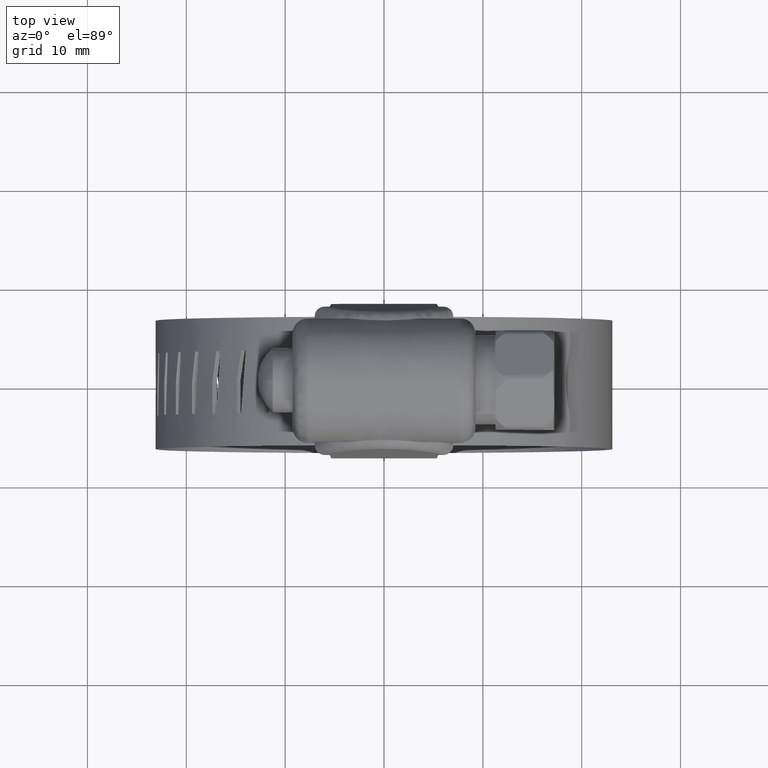
[diagram: clean part render]
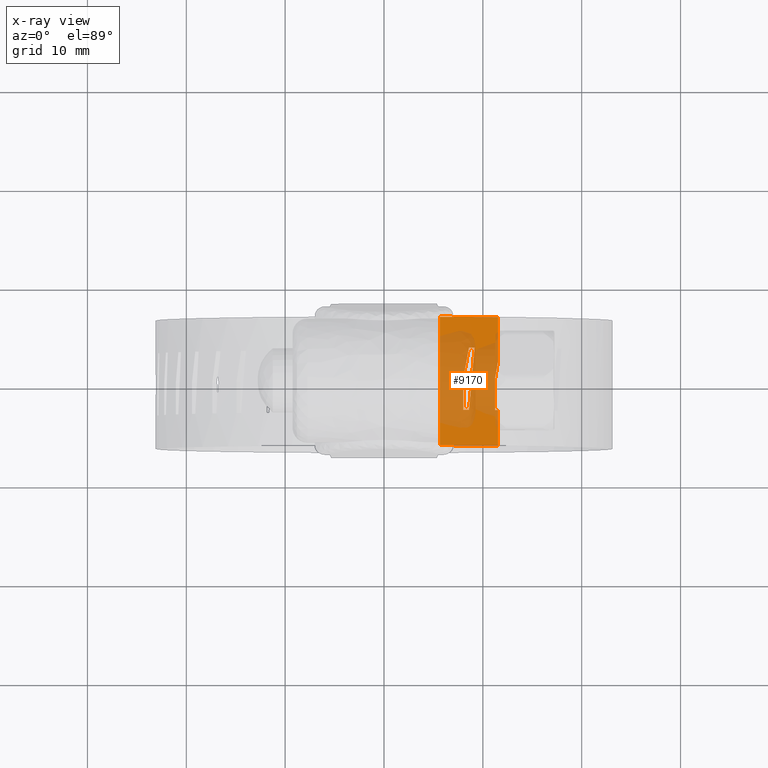
[diagram: x-ray — body ghosted, one internal face saturated and labeled with its STEP entity id]
A machine part, top view, then the same camera in x-ray: the body is ghosted and one INTERNAL B-rep face — a face not visible from any outside direction — is saturated and labeled: STEP entity #9170.
In plain terms, the highlighted face is a freeform B-spline surface patch.
Its self-contained STEP definition (entity closure, byte-faithful):
#7953=CARTESIAN_POINT('',(8.595020930609032,3.401648000000000,10.743378157524420));
#7954=VERTEX_POINT('',#7953);
#7955=CARTESIAN_POINT('',(9.166583311885781,3.401648000000000,10.541543048641021));
#7956=VERTEX_POINT('',#7955);
#7957=CARTESIAN_POINT('',(8.595020930609032,3.401648000000000,10.743378157524420));
#7958=CARTESIAN_POINT('',(9.166583311885781,3.401648000000000,10.541543048641021));
#7959=QUASI_UNIFORM_CURVE('',1,(#7957,#7958),.UNSPECIFIED.,.F.,.U.);
#7960=EDGE_CURVE('',#7954,#7956,#7959,.T.);
#7989=CARTESIAN_POINT('',(8.016921537547791,0.251647999999989,10.932719739934139));
#7990=VERTEX_POINT('',#7989);
#7991=CARTESIAN_POINT('',(8.016921537547791,0.251647999999989,10.932719739934139));
#7992=CARTESIAN_POINT('',(8.595020930609032,3.401648000000000,10.743378157524420));
#7993=QUASI_UNIFORM_CURVE('',1,(#7991,#7992),.UNSPECIFIED.,.F.,.U.);
#7994=EDGE_CURVE('',#7990,#7954,#7993,.T.);
#8017=CARTESIAN_POINT('',(8.016921537547850,-2.898352000000000,10.932719739934260));
#8018=VERTEX_POINT('',#8017);
#8019=CARTESIAN_POINT('',(8.016921537547850,-2.898352000000000,10.932719739934260));
#8020=CARTESIAN_POINT('',(8.016921537547791,0.251647999999989,10.932719739934139));
#8021=QUASI_UNIFORM_CURVE('',1,(#8019,#8020),.UNSPECIFIED.,.F.,.U.);
#8022=EDGE_CURVE('',#8018,#7990,#8021,.T.);
#8045=CARTESIAN_POINT('',(8.595020930609032,-2.898352000000000,10.743378157524420));
#8046=VERTEX_POINT('',#8045);
#8047=CARTESIAN_POINT('',(8.595020930609032,-2.898352000000000,10.743378157524420));
#8048=CARTESIAN_POINT('',(8.016921537547850,-2.898352000000000,10.932719739934260));
#8049=QUASI_UNIFORM_CURVE('',1,(#8047,#8048),.UNSPECIFIED.,.F.,.U.);
#8050=EDGE_CURVE('',#8046,#8018,#8049,.T.);
#8073=CARTESIAN_POINT('',(9.166583311885781,3.401648000000000,10.541543048641021));
#8074=CARTESIAN_POINT('',(8.595020930609032,-2.898352000000000,10.743378157524420));
#8075=QUASI_UNIFORM_CURVE('',1,(#8073,#8074),.UNSPECIFIED.,.F.,.U.);
#8076=EDGE_CURVE('',#7956,#8046,#8075,.T.);
#8093=CARTESIAN_POINT('',(11.534787568611300,2.028665353573155,9.541679945752271));
#8094=VERTEX_POINT('',#8093);
#8123=CARTESIAN_POINT('',(11.223236834775900,0.251647999999989,9.688952096084449));
#8124=VERTEX_POINT('',#8123);
#8130=CARTESIAN_POINT('',(11.223236834775900,0.251647999999989,9.688952096084449));
#8131=CARTESIAN_POINT('',(11.534787568611300,2.028665353573155,9.541679945752271));
#8132=QUASI_UNIFORM_CURVE('',1,(#8130,#8131),.UNSPECIFIED.,.F.,.U.);
#8133=EDGE_CURVE('',#8124,#8094,#8132,.T.);
#8143=CARTESIAN_POINT('',(11.223236834776101,-2.898352000000000,9.688952096084670));
#8144=VERTEX_POINT('',#8143);
#8145=CARTESIAN_POINT('',(11.223236834776101,-2.898352000000000,9.688952096084670));
#8146=CARTESIAN_POINT('',(11.223236834775900,0.251647999999989,9.688952096084449));
#8147=QUASI_UNIFORM_CURVE('',1,(#8145,#8146),.UNSPECIFIED.,.F.,.U.);
#8148=EDGE_CURVE('',#8144,#8124,#8147,.T.);
#8173=CARTESIAN_POINT('',(11.534787568611300,-2.898352000000000,9.541679945752271));
#8174=VERTEX_POINT('',#8173);
#8180=CARTESIAN_POINT('',(11.534787568611300,-2.898352000000000,9.541679945752271));
#8181=CARTESIAN_POINT('',(11.223236834776101,-2.898352000000000,9.688952096084670));
#8182=QUASI_UNIFORM_CURVE('',1,(#8180,#8181),.UNSPECIFIED.,.F.,.U.);
#8183=EDGE_CURVE('',#8174,#8144,#8182,.T.);
#8803=CARTESIAN_POINT('',(5.648248449040190,-6.499999999999840,11.559567490402561));
#8804=VERTEX_POINT('',#8803);
#8814=CARTESIAN_POINT('',(11.534787568611300,-6.499999999999840,9.541679945752271));
#8815=VERTEX_POINT('',#8814);
#8816=CARTESIAN_POINT('',(11.534787568611300,-6.499999999999840,9.541679945752271));
#8817=CARTESIAN_POINT('',(10.802827192343960,-6.499999999999829,9.893536437489994));
#8818=CARTESIAN_POINT('',(8.887511842089905,-6.499999999999856,10.707968489300191));
#8819=CARTESIAN_POINT('',(6.886730952510479,-6.499999999999829,11.292551027367770));
#8820=CARTESIAN_POINT('',(5.648248449040190,-6.499999999999840,11.559567490402561));
#8821=B_SPLINE_CURVE_WITH_KNOTS('',3,(#8816,#8817,#8818,#8819,#8820),.UNSPECIFIED.,.F.,.U.,(4,1,4),(4.568328E-010,2.436418763886612,6.237227370507423),.UNSPECIFIED.);
#8822=EDGE_CURVE('',#8815,#8804,#8821,.T.);
#8913=CARTESIAN_POINT('',(11.534787568611300,6.500000000000170,9.541679945752271));
#8914=VERTEX_POINT('',#8913);
#8923=CARTESIAN_POINT('',(5.648248449040190,6.500000000000170,11.559567490402561));
#8924=VERTEX_POINT('',#8923);
#8925=CARTESIAN_POINT('',(11.534787568611300,6.500000000000170,9.541679945752271));
#8926=CARTESIAN_POINT('',(10.802827192343971,6.500000000000158,9.893536437489997));
#8927=CARTESIAN_POINT('',(8.887511842089900,6.500000000000190,10.707968489300191));
#8928=CARTESIAN_POINT('',(6.886730952510487,6.500000000000159,11.292551027367770));
#8929=CARTESIAN_POINT('',(5.648248449040190,6.500000000000170,11.559567490402561));
#8930=B_SPLINE_CURVE_WITH_KNOTS('',3,(#8925,#8926,#8927,#8928,#8929),.UNSPECIFIED.,.F.,.U.,(4,1,4),(4.568328E-010,2.436418763886612,6.237227370507423),.UNSPECIFIED.);
#8931=EDGE_CURVE('',#8914,#8924,#8930,.T.);
#8966=CARTESIAN_POINT('',(5.648248449040190,6.500000000000170,11.559567490402561));
#8967=CARTESIAN_POINT('',(5.648248449040190,-6.499999999999840,11.559567490402561));
#8968=QUASI_UNIFORM_CURVE('',1,(#8966,#8967),.UNSPECIFIED.,.F.,.U.);
#8969=EDGE_CURVE('',#8924,#8804,#8968,.T.);
#9071=CARTESIAN_POINT('',(11.534787568611300,6.500000000000170,9.541679945752271));
#9072=CARTESIAN_POINT('',(11.534787568611300,2.028665353573155,9.541679945752271));
#9073=QUASI_UNIFORM_CURVE('',1,(#9071,#9072),.UNSPECIFIED.,.F.,.U.);
#9074=EDGE_CURVE('',#8914,#8094,#9073,.T.);
#9085=CARTESIAN_POINT('',(11.534787568611300,-2.898352000000000,9.541679945752271));
#9086=CARTESIAN_POINT('',(11.534787568611300,-6.499999999999840,9.541679945752271));
#9087=QUASI_UNIFORM_CURVE('',1,(#9085,#9086),.UNSPECIFIED.,.F.,.U.);
#9088=EDGE_CURVE('',#8174,#8815,#9087,.T.);
#9139=CARTESIAN_POINT('',(5.344547787735877,6.825000000000172,11.623200579697484));
#9140=CARTESIAN_POINT('',(5.344547787735877,-6.833124999999838,11.623200579697484));
#9141=CARTESIAN_POINT('',(8.723995258636874,6.825000000000171,10.935776528964881));
#9142=CARTESIAN_POINT('',(8.723995258636874,-6.833124999999839,10.935776528964881));
#9143=CARTESIAN_POINT('',(11.814410281545296,6.825000000000170,9.405236748270921));
#9144=CARTESIAN_POINT('',(11.814410281545296,-6.833124999999839,9.405236748270921));
#9152=(BOUNDED_SURFACE()B_SPLINE_SURFACE(1,2,((#9139,#9141,#9143),(#9140,#9142,#9144)),.UNSPECIFIED.,.F.,.F.,.U.)B_SPLINE_SURFACE_WITH_KNOTS((2,2),(3,3),(0.0,13.658125000000011),(0.0,6.868269107100779),.UNSPECIFIED.)GEOMETRIC_REPRESENTATION_ITEM()RATIONAL_B_SPLINE_SURFACE(((0.998114004197041,0.988344351837426,0.995289931149289),(0.998114004197041,0.988344351837426,0.995289931149289)))REPRESENTATION_ITEM('')SURFACE());
#9153=ORIENTED_EDGE('',*,*,#8183,.F.);
#9154=ORIENTED_EDGE('',*,*,#9088,.T.);
#9155=ORIENTED_EDGE('',*,*,#8822,.T.);
#9156=ORIENTED_EDGE('',*,*,#8969,.F.);
#9157=ORIENTED_EDGE('',*,*,#8931,.F.);
#9158=ORIENTED_EDGE('',*,*,#9074,.T.);
#9159=ORIENTED_EDGE('',*,*,#8133,.F.);
#9160=ORIENTED_EDGE('',*,*,#8148,.F.);
#9161=EDGE_LOOP('',(#9153,#9154,#9155,#9156,#9157,#9158,#9159,#9160));
#9162=FACE_OUTER_BOUND('',#9161,.T.);
#9163=ORIENTED_EDGE('',*,*,#8076,.F.);
#9164=ORIENTED_EDGE('',*,*,#7960,.F.);
#9165=ORIENTED_EDGE('',*,*,#7994,.F.);
#9166=ORIENTED_EDGE('',*,*,#8022,.F.);
#9167=ORIENTED_EDGE('',*,*,#8050,.F.);
#9168=EDGE_LOOP('',(#9163,#9164,#9165,#9166,#9167));
#9169=FACE_BOUND('',#9168,.T.);
#9170=ADVANCED_FACE('',(#9162,#9169),#9152,.F.);